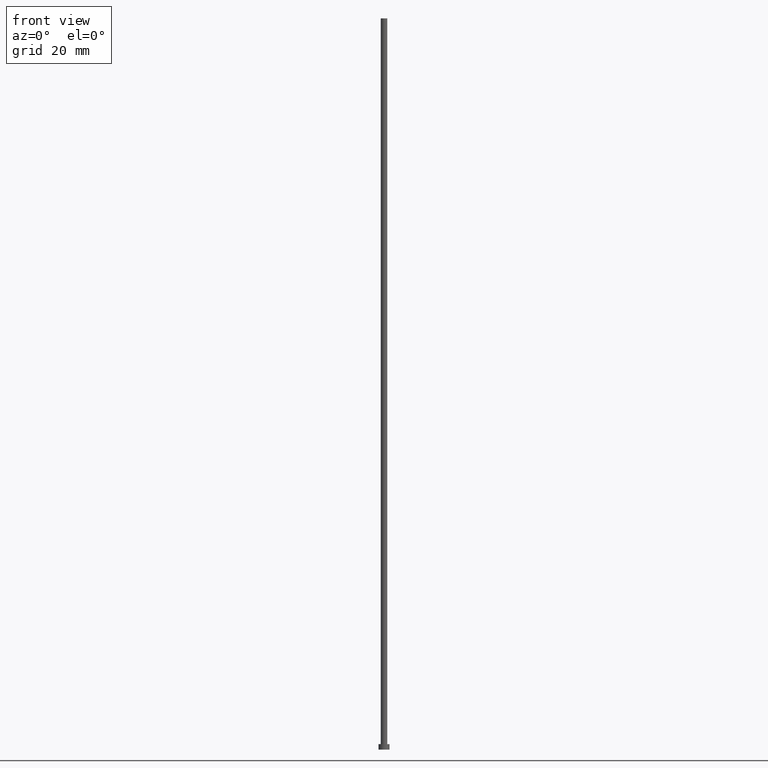
[diagram: clean part render]
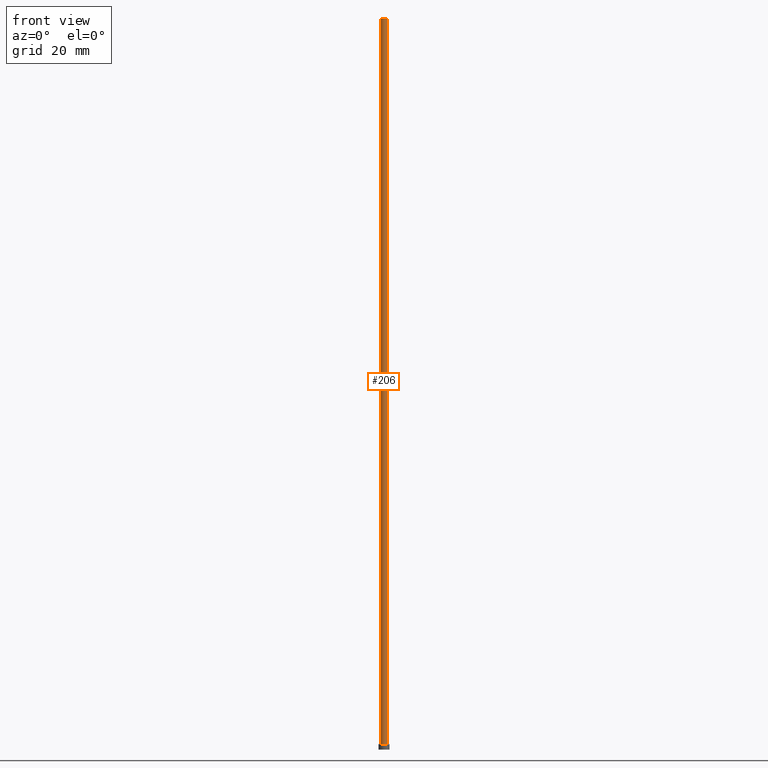
[diagram: same view with one face highlighted and labeled with its STEP entity id]
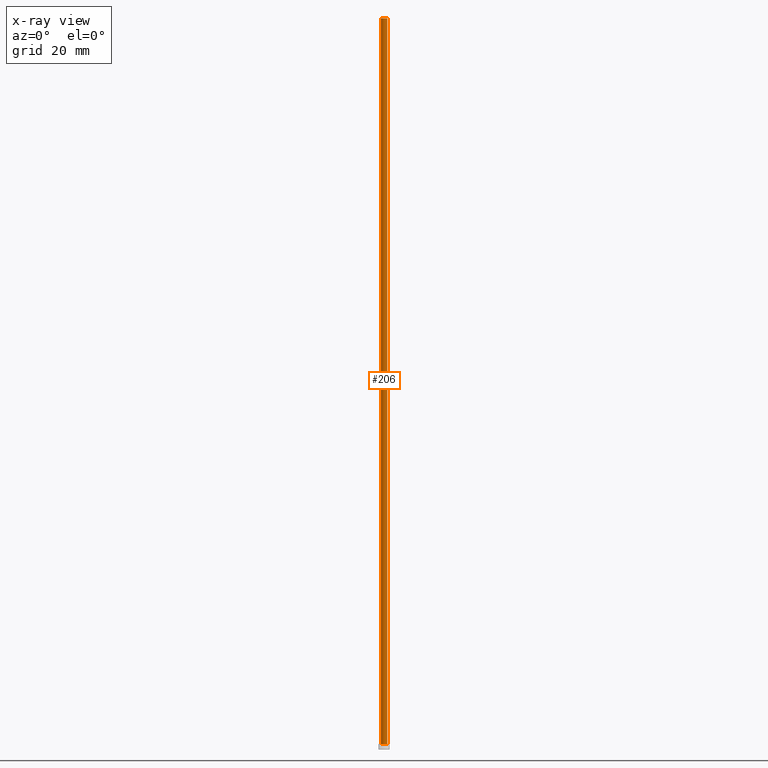
[diagram: x-ray of the same camera — body ghosted, the highlighted face saturated]
A machine part, front view. The second image highlights one B-rep face of the part: STEP entity #206.
The next image is the same camera in x-ray: the body ghosted, the highlighted face saturated — about 0% of this face is hidden behind the body in this view.
In plain terms, the highlighted cylindrical surface (edge-blend (fillet) strip) has radius 0.9 mm, axis along (-0, -0, -1).
Its self-contained STEP definition (entity closure, byte-faithful):
#10 = CARTESIAN_POINT ( 'NONE',  ( -0.9000000000000000222, 0.000000000000000000, 1.500000000000000000 ) ) ;
#16 = DIRECTION ( 'NONE',  ( -0.000000000000000000, -0.000000000000000000, -1.000000000000000000 ) ) ;
#18 = LINE ( 'NONE', #173, #107 ) ;
#19 = LINE ( 'NONE', #200, #21 ) ;
#20 = DIRECTION ( 'NONE',  ( 1.000000000000000000, 0.000000000000000000, 0.000000000000000000 ) ) ;
#21 = VECTOR ( 'NONE', #46, 1000.000000000000000 ) ;
#22 = VERTEX_POINT ( 'NONE', #45 ) ;
#25 = AXIS2_PLACEMENT_3D ( 'NONE', #165, #55, #74 ) ;
#37 = ORIENTED_EDGE ( 'NONE', *, *, #69, .F. ) ;
#45 = CARTESIAN_POINT ( 'NONE',  ( 0.9000000000000000222, 1.102182119232617788E-16, 1.500000000000000000 ) ) ;
#46 = DIRECTION ( 'NONE',  ( -0.000000000000000000, -0.000000000000000000, -1.000000000000000000 ) ) ;
#47 = EDGE_CURVE ( 'NONE', #167, #22, #179, .T. ) ;
#55 = DIRECTION ( 'NONE',  ( 0.000000000000000000, 0.000000000000000000, 1.000000000000000000 ) ) ;
#69 = EDGE_CURVE ( 'NONE', #120, #143, #204, .T. ) ;
#74 = DIRECTION ( 'NONE',  ( 1.000000000000000000, 0.000000000000000000, 0.000000000000000000 ) ) ;
#78 = ORIENTED_EDGE ( 'NONE', *, *, #244, .T. ) ;
#95 = DIRECTION ( 'NONE',  ( 0.000000000000000000, 0.000000000000000000, 1.000000000000000000 ) ) ;
#99 = CARTESIAN_POINT ( 'NONE',  ( 0.000000000000000000, 0.000000000000000000, 200.0000000000000000 ) ) ;
#107 = VECTOR ( 'NONE', #231, 1000.000000000000000 ) ;
#118 = CARTESIAN_POINT ( 'NONE',  ( -0.9000000000000000222, 0.000000000000000000, 200.0000000000000000 ) ) ;
#120 = VERTEX_POINT ( 'NONE', #118 ) ;
#124 = EDGE_CURVE ( 'NONE', #143, #22, #19, .T. ) ;
#132 = CARTESIAN_POINT ( 'NONE',  ( 0.9000000000000000222, 1.102182119232617788E-16, 200.0000000000000000 ) ) ;
#143 = VERTEX_POINT ( 'NONE', #132 ) ;
#152 = CARTESIAN_POINT ( 'NONE',  ( 0.000000000000000000, 0.000000000000000000, 200.0000000000000000 ) ) ;
#159 = AXIS2_PLACEMENT_3D ( 'NONE', #99, #95, #20 ) ;
#163 = ORIENTED_EDGE ( 'NONE', *, *, #124, .F. ) ;
#165 = CARTESIAN_POINT ( 'NONE',  ( 0.000000000000000000, 0.000000000000000000, 1.500000000000000000 ) ) ;
#167 = VERTEX_POINT ( 'NONE', #10 ) ;
#173 = CARTESIAN_POINT ( 'NONE',  ( -0.9000000000000000222, 0.000000000000000000, 200.0000000000000000 ) ) ;
#176 = FACE_OUTER_BOUND ( 'NONE', #219, .T. ) ;
#179 = CIRCLE ( 'NONE', #25, 0.9000000000000000222 ) ;
#200 = CARTESIAN_POINT ( 'NONE',  ( 0.9000000000000000222, 1.102182119232617788E-16, 200.0000000000000000 ) ) ;
#204 = CIRCLE ( 'NONE', #159, 0.9000000000000000222 ) ;
#206 = ADVANCED_FACE ( 'NONE', ( #176 ), #249, .T. ) ;
#207 = ORIENTED_EDGE ( 'NONE', *, *, #47, .T. ) ;
#218 = AXIS2_PLACEMENT_3D ( 'NONE', #152, #16, #224 ) ;
#219 = EDGE_LOOP ( 'NONE', ( #163, #37, #78, #207 ) ) ;
#224 = DIRECTION ( 'NONE',  ( -1.000000000000000000, 0.000000000000000000, 0.000000000000000000 ) ) ;
#231 = DIRECTION ( 'NONE',  ( -0.000000000000000000, -0.000000000000000000, -1.000000000000000000 ) ) ;
#244 = EDGE_CURVE ( 'NONE', #120, #167, #18, .T. ) ;
#249 = CYLINDRICAL_SURFACE ( 'NONE', #218, 0.9000000000000000222 ) ;